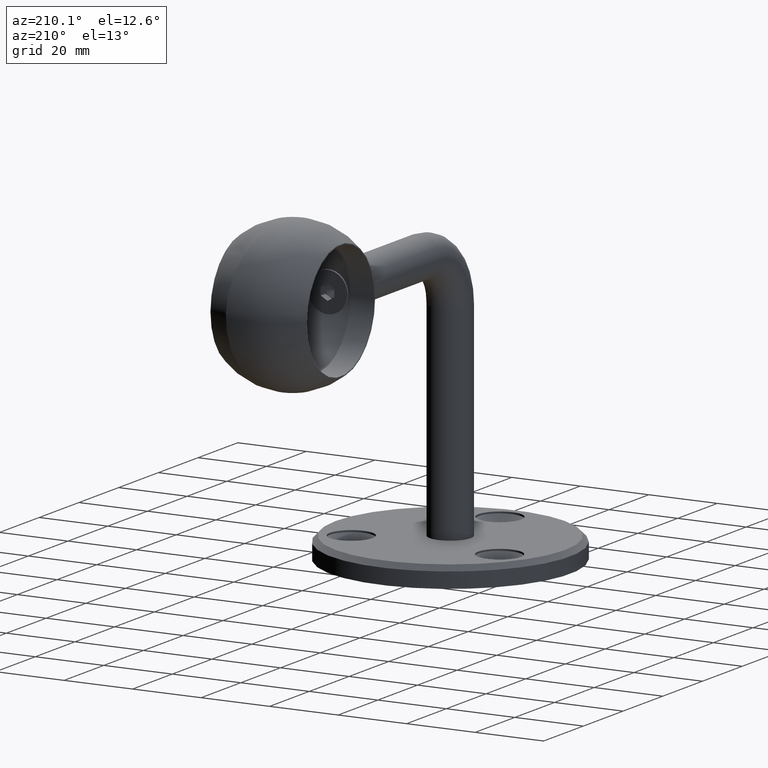
[diagram: clean part render]
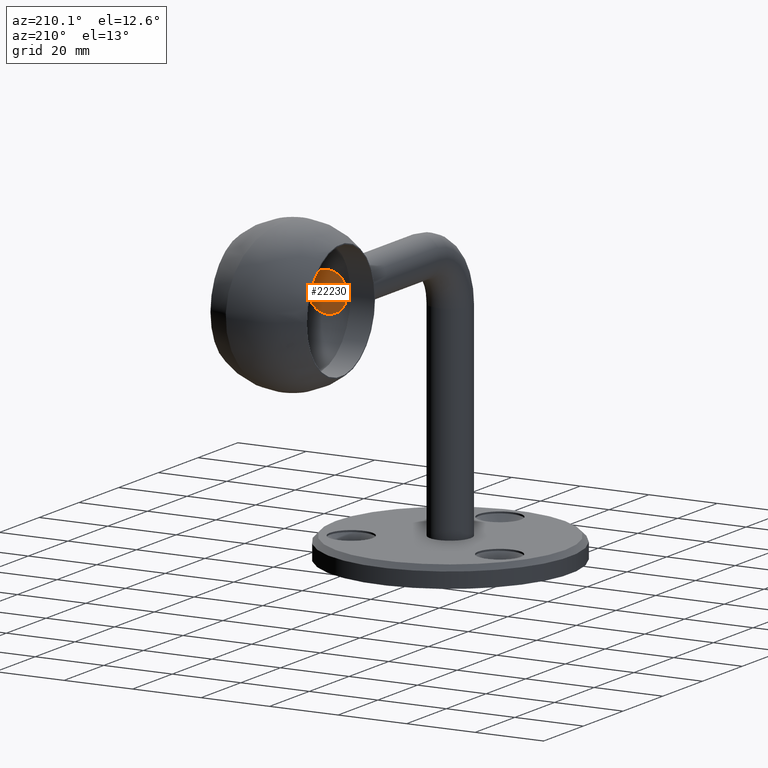
[diagram: same view with one face highlighted and labeled with its STEP entity id]
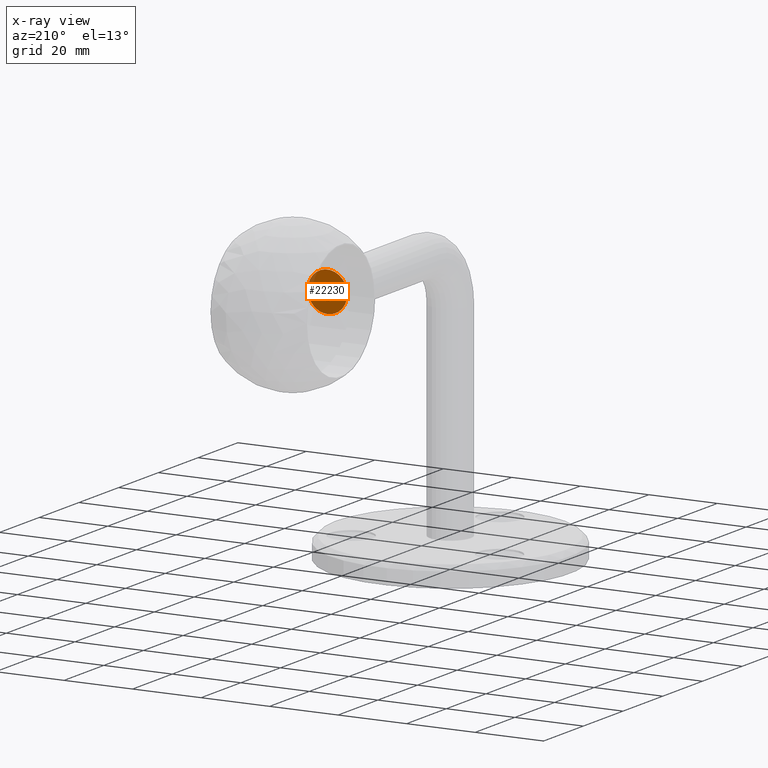
[diagram: x-ray of the same camera — body ghosted, the highlighted face saturated]
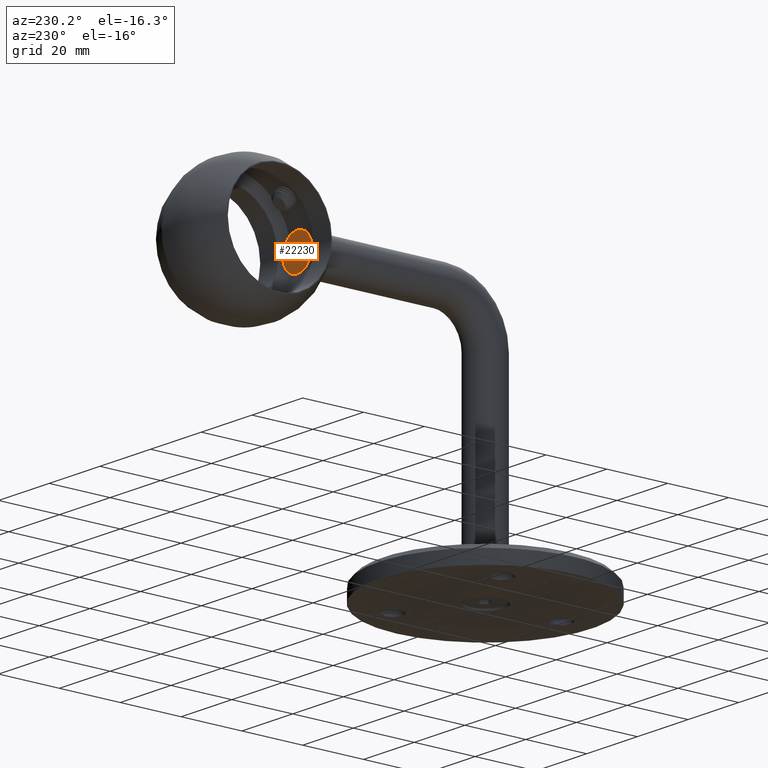
[diagram: same view with one face highlighted and labeled with its STEP entity id]
A machine part, auxiliary view. The second image highlights one B-rep face of the part: STEP entity #22230.
The next image is the same camera in x-ray: the body ghosted, the highlighted face saturated — about 8% of this face is hidden behind the body in this view.
A second angle (auxiliary view) of the same face is appended — the face is thin or edge-on in the first view.
In plain terms, the highlighted planar face has unit normal (0, 1, -0).
Its self-contained STEP definition (entity closure, byte-faithful):
#246 = CARTESIAN_POINT ( 'NONE',  ( 0.000000000000000000, 0.000000000000000000, 5.785000000000000142 ) ) ;
#599 = EDGE_CURVE ( 'NONE', #24923, #14385, #9599, .T. ) ;
#1998 = VERTEX_POINT ( 'NONE', #24300 ) ;
#3145 = ORIENTED_EDGE ( 'NONE', *, *, #26646, .T. ) ;
#3471 = LINE ( 'NONE', #9758, #27321 ) ;
#4220 = CARTESIAN_POINT ( 'NONE',  ( 0.000000000000000000, -2.320948082142291646, 2.168404344971008868E-16 ) ) ;
#4583 = LINE ( 'NONE', #20656, #14295 ) ;
#5024 = EDGE_CURVE ( 'NONE', #1998, #18719, #5812, .T. ) ;
#5273 = CIRCLE ( 'NONE', #12607, 5.785000000000000142 ) ;
#5812 = LINE ( 'NONE', #6338, #27930 ) ;
#6044 = ORIENTED_EDGE ( 'NONE', *, *, #15939, .T. ) ;
#6338 = CARTESIAN_POINT ( 'NONE',  ( 0.000000000000000000, 2.320948082142295643, 8.350257052548250149E-16 ) ) ;
#7250 = DIRECTION ( 'NONE',  ( 0.000000000000000000, 1.000000000000000000, 0.000000000000000000 ) ) ;
#7459 = CARTESIAN_POINT ( 'NONE',  ( -0.000000000000000000, -1.160474041071146267, -2.009999999999999787 ) ) ;
#7726 = DIRECTION ( 'NONE',  ( 0.000000000000000000, -0.4999999999999995004, -0.8660254037844389297 ) ) ;
#8237 = CARTESIAN_POINT ( 'NONE',  ( 0.000000000000000000, 1.160474041071148710, -2.009999999999999787 ) ) ;
#8514 = EDGE_LOOP ( 'NONE', ( #3145, #18432, #23493, #6044, #11270, #13680 ) ) ;
#8828 = DIRECTION ( 'NONE',  ( -1.000000000000000000, 0.000000000000000000, -0.000000000000000000 ) ) ;
#9599 = LINE ( 'NONE', #24047, #9944 ) ;
#9758 = CARTESIAN_POINT ( 'NONE',  ( 0.000000000000000000, -1.160474041071146489, 2.009999999999999787 ) ) ;
#9944 = VECTOR ( 'NONE', #19576, 1000.000000000000000 ) ;
#10210 = EDGE_CURVE ( 'NONE', #19015, #19015, #5273, .T. ) ;
#10621 = EDGE_CURVE ( 'NONE', #18719, #21863, #4583, .T. ) ;
#10706 = AXIS2_PLACEMENT_3D ( 'NONE', #26188, #8828, #26379 ) ;
#10794 = CARTESIAN_POINT ( 'NONE',  ( 0.000000000000000000, 1.160474041071148710, -2.009999999999999787 ) ) ;
#11270 = ORIENTED_EDGE ( 'NONE', *, *, #5024, .T. ) ;
#12607 = AXIS2_PLACEMENT_3D ( 'NONE', #15934, #18166, #22492 ) ;
#12655 = FACE_BOUND ( 'NONE', #8514, .T. ) ;
#13680 = ORIENTED_EDGE ( 'NONE', *, *, #10621, .T. ) ;
#14295 = VECTOR ( 'NONE', #18519, 1000.000000000000000 ) ;
#14385 = VERTEX_POINT ( 'NONE', #21687 ) ;
#15036 = CARTESIAN_POINT ( 'NONE',  ( 0.000000000000000000, 1.160474041071148710, 2.009999999999999787 ) ) ;
#15071 = DIRECTION ( 'NONE',  ( 0.000000000000000000, -0.4999999999999999445, 0.8660254037844385966 ) ) ;
#15766 = FACE_OUTER_BOUND ( 'NONE', #19413, .T. ) ;
#15844 = LINE ( 'NONE', #7459, #26519 ) ;
#15934 = CARTESIAN_POINT ( 'NONE',  ( 0.000000000000000000, 0.000000000000000000, 0.000000000000000000 ) ) ;
#15939 = EDGE_CURVE ( 'NONE', #20814, #1998, #22812, .T. ) ;
#16249 = VECTOR ( 'NONE', #17461, 1000.000000000000000 ) ;
#16856 = CARTESIAN_POINT ( 'NONE',  ( 0.000000000000000000, -1.160474041071146489, 2.009999999999999787 ) ) ;
#16997 = ORIENTED_EDGE ( 'NONE', *, *, #10210, .T. ) ;
#17461 = DIRECTION ( 'NONE',  ( 0.000000000000000000, 0.4999999999999996114, 0.8660254037844388186 ) ) ;
#17637 = PLANE ( 'NONE',  #10706 ) ;
#18166 = DIRECTION ( 'NONE',  ( -1.000000000000000000, -0.000000000000000000, -0.000000000000000000 ) ) ;
#18432 = ORIENTED_EDGE ( 'NONE', *, *, #599, .T. ) ;
#18519 = DIRECTION ( 'NONE',  ( 0.000000000000000000, -1.000000000000000000, 0.000000000000000000 ) ) ;
#18719 = VERTEX_POINT ( 'NONE', #15036 ) ;
#19000 = EDGE_CURVE ( 'NONE', #14385, #20814, #15844, .T. ) ;
#19015 = VERTEX_POINT ( 'NONE', #246 ) ;
#19413 = EDGE_LOOP ( 'NONE', ( #16997 ) ) ;
#19576 = DIRECTION ( 'NONE',  ( -0.000000000000000000, 0.4999999999999996114, -0.8660254037844389297 ) ) ;
#20656 = CARTESIAN_POINT ( 'NONE',  ( 0.000000000000000000, 1.160474041071148710, 2.009999999999999787 ) ) ;
#20814 = VERTEX_POINT ( 'NONE', #8237 ) ;
#21687 = CARTESIAN_POINT ( 'NONE',  ( -0.000000000000000000, -1.160474041071146267, -2.009999999999999787 ) ) ;
#21863 = VERTEX_POINT ( 'NONE', #16856 ) ;
#22230 = ADVANCED_FACE ( 'NONE', ( #15766, #12655 ), #17637, .T. ) ;
#22492 = DIRECTION ( 'NONE',  ( 0.000000000000000000, 0.000000000000000000, 1.000000000000000000 ) ) ;
#22812 = LINE ( 'NONE', #10794, #16249 ) ;
#23493 = ORIENTED_EDGE ( 'NONE', *, *, #19000, .T. ) ;
#24047 = CARTESIAN_POINT ( 'NONE',  ( 0.000000000000000000, -2.320948082142292535, 4.090768232818179312E-17 ) ) ;
#24300 = CARTESIAN_POINT ( 'NONE',  ( 0.000000000000000000, 2.320948082142295643, 8.350257052548250149E-16 ) ) ;
#24923 = VERTEX_POINT ( 'NONE', #4220 ) ;
#26188 = CARTESIAN_POINT ( 'NONE',  ( 0.000000000000000000, 0.000000000000000000, 0.000000000000000000 ) ) ;
#26379 = DIRECTION ( 'NONE',  ( -0.000000000000000000, 0.000000000000000000, 1.000000000000000000 ) ) ;
#26519 = VECTOR ( 'NONE', #7250, 1000.000000000000000 ) ;
#26646 = EDGE_CURVE ( 'NONE', #21863, #24923, #3471, .T. ) ;
#27321 = VECTOR ( 'NONE', #7726, 1000.000000000000000 ) ;
#27930 = VECTOR ( 'NONE', #15071, 1000.000000000000114 ) ;